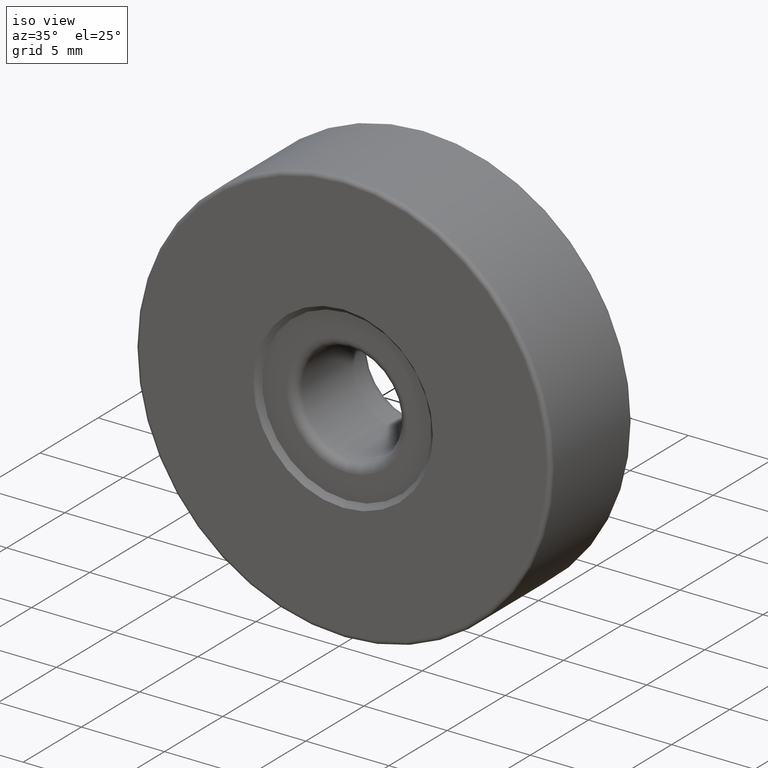
[diagram: clean part render]
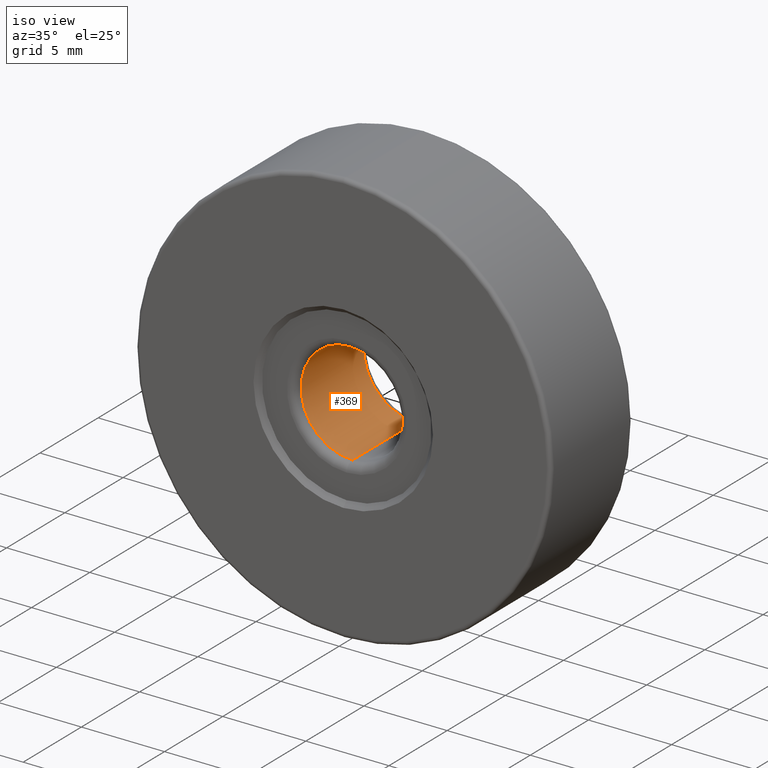
[diagram: same view with one face highlighted and labeled with its STEP entity id]
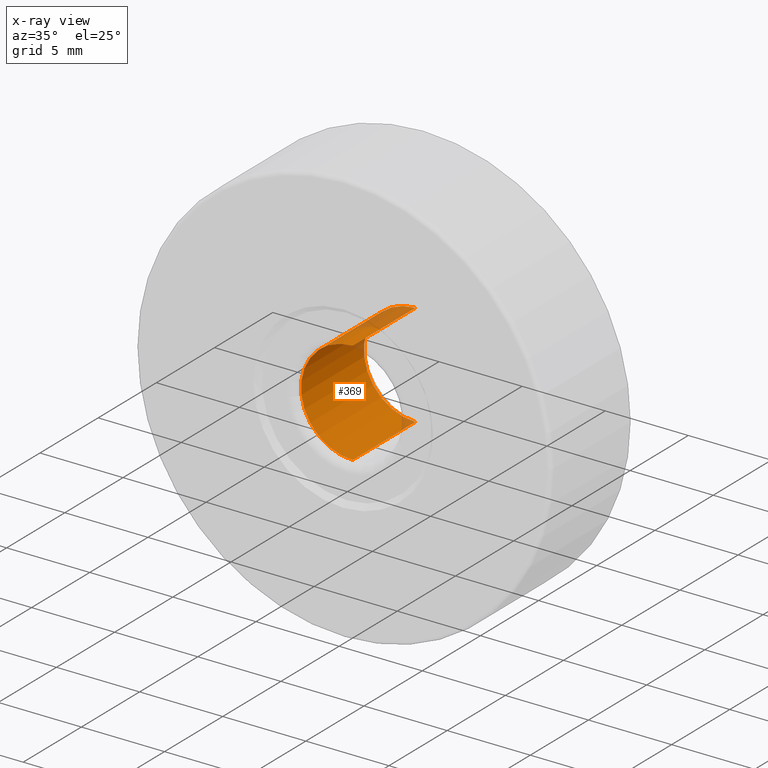
[diagram: x-ray of the same camera — body ghosted, the highlighted face saturated]
A machine part, iso view. The second image highlights one B-rep face of the part: STEP entity #369.
The next image is the same camera in x-ray: the body ghosted, the highlighted face saturated — about 9% of this face is hidden behind the body in this view.
In plain terms, the highlighted cylindrical surface (partial cylindrical patch) has radius 3.1 mm, axis along (-0, 1, -0).
Its self-contained STEP definition (entity closure, byte-faithful):
#3 = ORIENTED_EDGE ( 'NONE', *, *, #190, .T. ) ;
#30 = EDGE_CURVE ( 'NONE', #132, #259, #220, .T. ) ;
#96 = DIRECTION ( 'NONE',  ( 0.0000000000000000000, 0.0000000000000000000, -1.000000000000000000 ) ) ;
#132 = VERTEX_POINT ( 'NONE', #280 ) ;
#162 = CIRCLE ( 'NONE', #601, 3.099999999999998757 ) ;
#168 = CARTESIAN_POINT ( 'NONE',  ( -4.682026255059964726, -5.094975976998274980, 28.10000000000000142 ) ) ;
#172 = CARTESIAN_POINT ( 'NONE',  ( -4.682026255059964726, 1.105024023001725864, 25.00000000000000000 ) ) ;
#180 = VECTOR ( 'NONE', #453, 1000.000000000000000 ) ;
#190 = EDGE_CURVE ( 'NONE', #271, #132, #495, .T. ) ;
#201 = CARTESIAN_POINT ( 'NONE',  ( -4.682026255059964726, -4.294975976998275158, 28.10000000000000142 ) ) ;
#203 = DIRECTION ( 'NONE',  ( -0.0000000000000000000, 1.000000000000000000, -0.0000000000000000000 ) ) ;
#220 = LINE ( 'NONE', #550, #394 ) ;
#225 = AXIS2_PLACEMENT_3D ( 'NONE', #237, #523, #96 ) ;
#228 = DIRECTION ( 'NONE',  ( -0.0000000000000000000, 1.000000000000000000, -0.0000000000000000000 ) ) ;
#237 = CARTESIAN_POINT ( 'NONE',  ( -4.682026255059964726, -4.294975976998275158, 25.00000000000000000 ) ) ;
#249 = ORIENTED_EDGE ( 'NONE', *, *, #30, .T. ) ;
#250 = CYLINDRICAL_SURFACE ( 'NONE', #288, 3.099999999999998757 ) ;
#254 = ORIENTED_EDGE ( 'NONE', *, *, #402, .F. ) ;
#259 = VERTEX_POINT ( 'NONE', #448 ) ;
#271 = VERTEX_POINT ( 'NONE', #201 ) ;
#280 = CARTESIAN_POINT ( 'NONE',  ( -4.682026255059964726, -4.294975976998275158, 21.90000000000000213 ) ) ;
#286 = ORIENTED_EDGE ( 'NONE', *, *, #538, .T. ) ;
#288 = AXIS2_PLACEMENT_3D ( 'NONE', #443, #203, #490 ) ;
#313 = VERTEX_POINT ( 'NONE', #387 ) ;
#369 = ADVANCED_FACE ( 'NONE', ( #487 ), #250, .F. ) ;
#387 = CARTESIAN_POINT ( 'NONE',  ( -4.682026255059964726, 1.105024023001725864, 28.10000000000000142 ) ) ;
#394 = VECTOR ( 'NONE', #228, 1000.000000000000000 ) ;
#402 = EDGE_CURVE ( 'NONE', #271, #313, #416, .T. ) ;
#416 = LINE ( 'NONE', #168, #180 ) ;
#443 = CARTESIAN_POINT ( 'NONE',  ( -4.682026255059964726, -5.094975976998274980, 25.00000000000000000 ) ) ;
#448 = CARTESIAN_POINT ( 'NONE',  ( -4.682026255059964726, 1.105024023001725864, 21.90000000000000213 ) ) ;
#452 = EDGE_LOOP ( 'NONE', ( #3, #249, #286, #254 ) ) ;
#453 = DIRECTION ( 'NONE',  ( -0.0000000000000000000, 1.000000000000000000, -0.0000000000000000000 ) ) ;
#487 = FACE_OUTER_BOUND ( 'NONE', #452, .T. ) ;
#490 = DIRECTION ( 'NONE',  ( 0.0000000000000000000, 0.0000000000000000000, 1.000000000000000000 ) ) ;
#495 = CIRCLE ( 'NONE', #225, 3.099999999999998757 ) ;
#523 = DIRECTION ( 'NONE',  ( 0.0000000000000000000, -1.000000000000000000, 0.0000000000000000000 ) ) ;
#538 = EDGE_CURVE ( 'NONE', #259, #313, #162, .T. ) ;
#545 = DIRECTION ( 'NONE',  ( 0.0000000000000000000, 1.000000000000000000, 0.0000000000000000000 ) ) ;
#547 = DIRECTION ( 'NONE',  ( 0.0000000000000000000, 0.0000000000000000000, 1.000000000000000000 ) ) ;
#550 = CARTESIAN_POINT ( 'NONE',  ( -4.682026255059964726, -5.094975976998274980, 21.90000000000000213 ) ) ;
#601 = AXIS2_PLACEMENT_3D ( 'NONE', #172, #545, #547 ) ;